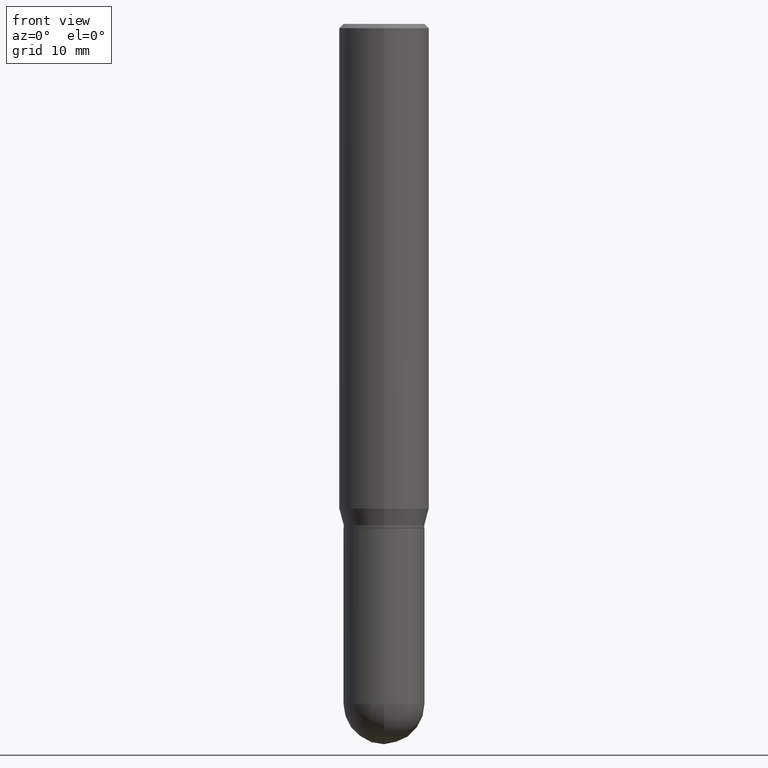
[diagram: clean part render]
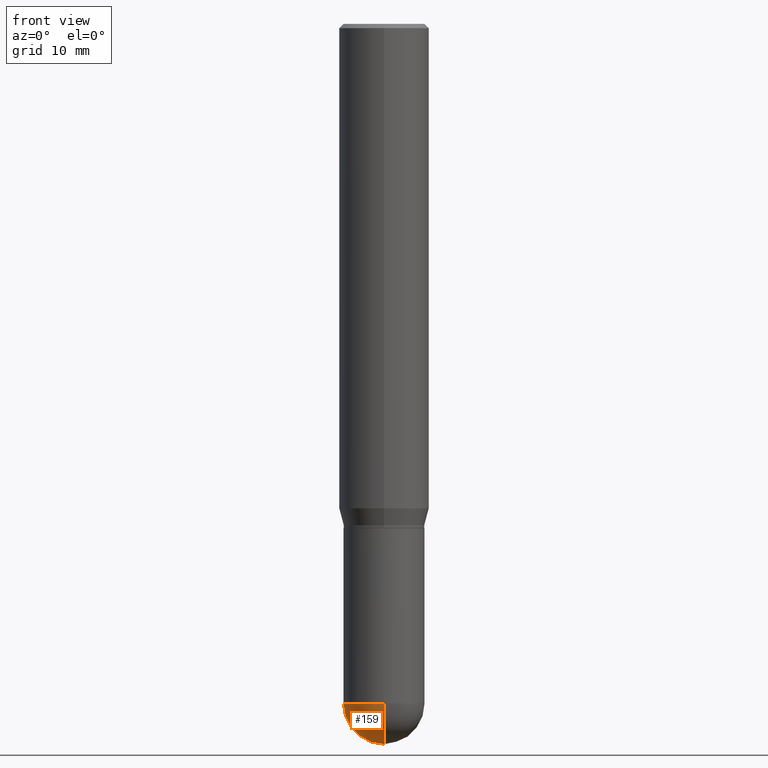
[diagram: same view with one face highlighted and labeled with its STEP entity id]
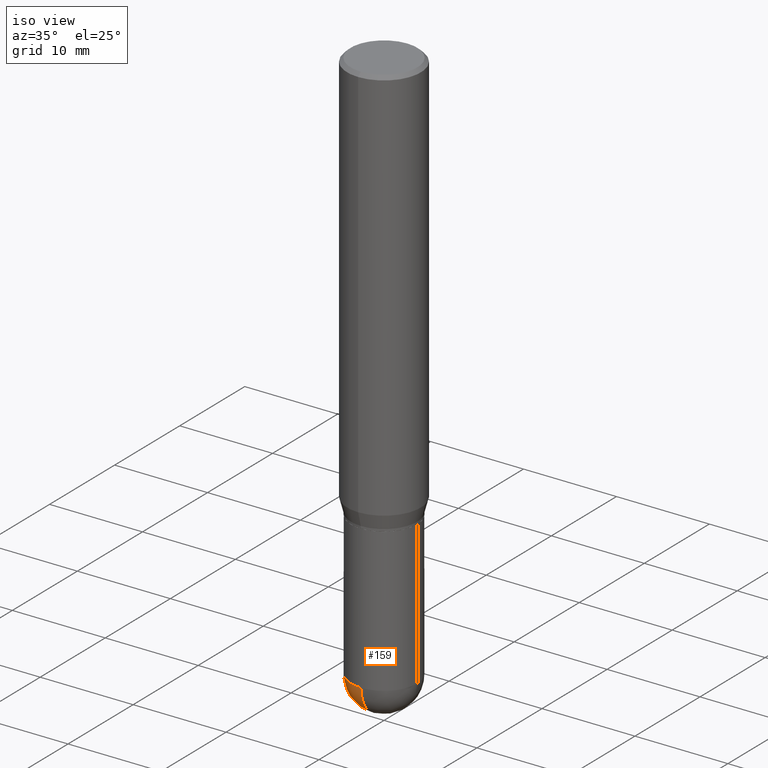
[diagram: same view with one face highlighted and labeled with its STEP entity id]
A machine part, front view. The second image highlights one B-rep face of the part: STEP entity #159.
A second angle (iso view) of the same face is appended — the face is thin or edge-on in the first view.
In plain terms, the highlighted spherical surface has radius 3.5712 mm.
Its self-contained STEP definition (entity closure, byte-faithful):
#5 = CARTESIAN_POINT ( 'NONE',  ( -0.1406000000000000583, -6.174923620442310269E-15, -2.359399999999999942 ) ) ;
#16 = DIRECTION ( 'NONE',  ( 1.000000000000000000, -6.982962677686270655E-15, 0.000000000000000000 ) ) ;
#34 = DIRECTION ( 'NONE',  ( 1.000000000000000000, -6.982962677686270655E-15, 0.000000000000000000 ) ) ;
#44 = CARTESIAN_POINT ( 'NONE',  ( 9.818045524827470871E-16, 0.1405999999999918426, -2.359400000000000386 ) ) ;
#54 = AXIS2_PLACEMENT_3D ( 'NONE', #78, #305, #225 ) ;
#55 = CARTESIAN_POINT ( 'NONE',  ( 5.769839101313211634E-29, -8.237801070866517629E-15, -2.359399999999999942 ) ) ;
#64 = AXIS2_PLACEMENT_3D ( 'NONE', #228, #123, #89 ) ;
#77 = CIRCLE ( 'NONE', #414, 0.1406000000000000305 ) ;
#78 = CARTESIAN_POINT ( 'NONE',  ( 5.757815463287349061E-29, -8.255019604862529009E-15, -2.359399999999999942 ) ) ;
#82 = DIRECTION ( 'NONE',  ( -2.445468806185136597E-29, 3.491481338843145583E-15, 1.000000000000000000 ) ) ;
#89 = DIRECTION ( 'NONE',  ( 6.982962677686266711E-15, 1.000000000000000000, 0.000000000000000000 ) ) ;
#123 = DIRECTION ( 'NONE',  ( 1.000000000000000000, -6.982962677686265922E-15, 4.883557194083112340E-29 ) ) ;
#132 = VERTEX_POINT ( 'NONE', #463 ) ;
#135 = CARTESIAN_POINT ( 'NONE',  ( 6.107660196449910766E-29, -8.737312614105869844E-15, -2.500000000000000000 ) ) ;
#137 = EDGE_CURVE ( 'NONE', #175, #230, #77, .T. ) ;
#148 = EDGE_CURVE ( 'NONE', #256, #175, #473, .T. ) ;
#159 = ADVANCED_FACE ( 'NONE', ( #238 ), #334, .T. ) ;
#172 = ORIENTED_EDGE ( 'NONE', *, *, #137, .F. ) ;
#175 = VERTEX_POINT ( 'NONE', #44 ) ;
#206 = EDGE_LOOP ( 'NONE', ( #451, #313, #474, #172 ) ) ;
#225 = DIRECTION ( 'NONE',  ( -7.105427357601001859E-15, -1.000000000000000000, 0.000000000000000000 ) ) ;
#228 = CARTESIAN_POINT ( 'NONE',  ( 5.757815463287349061E-29, -8.255019604862529009E-15, -2.359399999999999942 ) ) ;
#230 = VERTEX_POINT ( 'NONE', #5 ) ;
#238 = FACE_OUTER_BOUND ( 'NONE', #206, .T. ) ;
#256 = VERTEX_POINT ( 'NONE', #135 ) ;
#268 = CIRCLE ( 'NONE', #54, 0.1406000000000000860 ) ;
#274 = EDGE_CURVE ( 'NONE', #230, #132, #372, .T. ) ;
#287 = DIRECTION ( 'NONE',  ( 6.982962677686265922E-15, 1.000000000000000000, -3.885985766236502230E-15 ) ) ;
#305 = DIRECTION ( 'NONE',  ( -1.000000000000000000, 7.105427357601001070E-15, -4.926315508542082329E-29 ) ) ;
#313 = ORIENTED_EDGE ( 'NONE', *, *, #344, .T. ) ;
#334 = SPHERICAL_SURFACE ( 'NONE', #448, 0.1406000000000000860 ) ;
#344 = EDGE_CURVE ( 'NONE', #256, #132, #268, .T. ) ;
#364 = CARTESIAN_POINT ( 'NONE',  ( 5.757815463287349061E-29, -8.255019604862529009E-15, -2.359399999999999942 ) ) ;
#368 = DIRECTION ( 'NONE',  ( -2.445468806185136597E-29, 3.491481338843145583E-15, 1.000000000000000000 ) ) ;
#372 = CIRCLE ( 'NONE', #400, 0.1406000000000000305 ) ;
#400 = AXIS2_PLACEMENT_3D ( 'NONE', #55, #368, #16 ) ;
#414 = AXIS2_PLACEMENT_3D ( 'NONE', #512, #82, #34 ) ;
#448 = AXIS2_PLACEMENT_3D ( 'NONE', #364, #480, #287 ) ;
#451 = ORIENTED_EDGE ( 'NONE', *, *, #148, .F. ) ;
#463 = CARTESIAN_POINT ( 'NONE',  ( -9.990230864786434913E-16, -0.1406000000000083017, -2.359399999999999498 ) ) ;
#473 = CIRCLE ( 'NONE', #64, 0.1406000000000000860 ) ;
#474 = ORIENTED_EDGE ( 'NONE', *, *, #274, .F. ) ;
#480 = DIRECTION ( 'NONE',  ( -1.000000000000000000, 6.982962677686265922E-15, -4.883557194083112340E-29 ) ) ;
#512 = CARTESIAN_POINT ( 'NONE',  ( 5.769839101313211634E-29, -8.237801070866517629E-15, -2.359399999999999942 ) ) ;